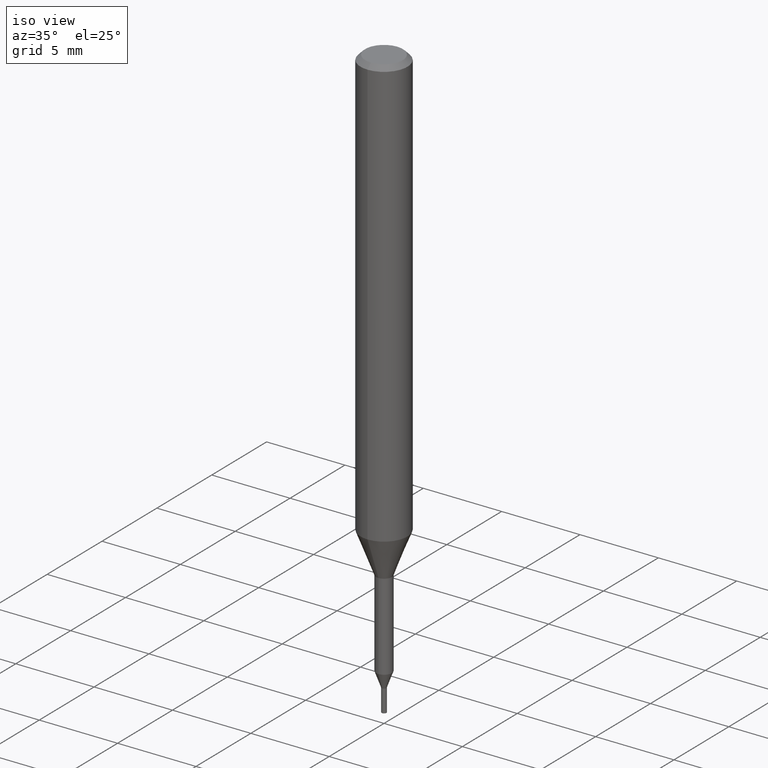
[diagram: clean part render]
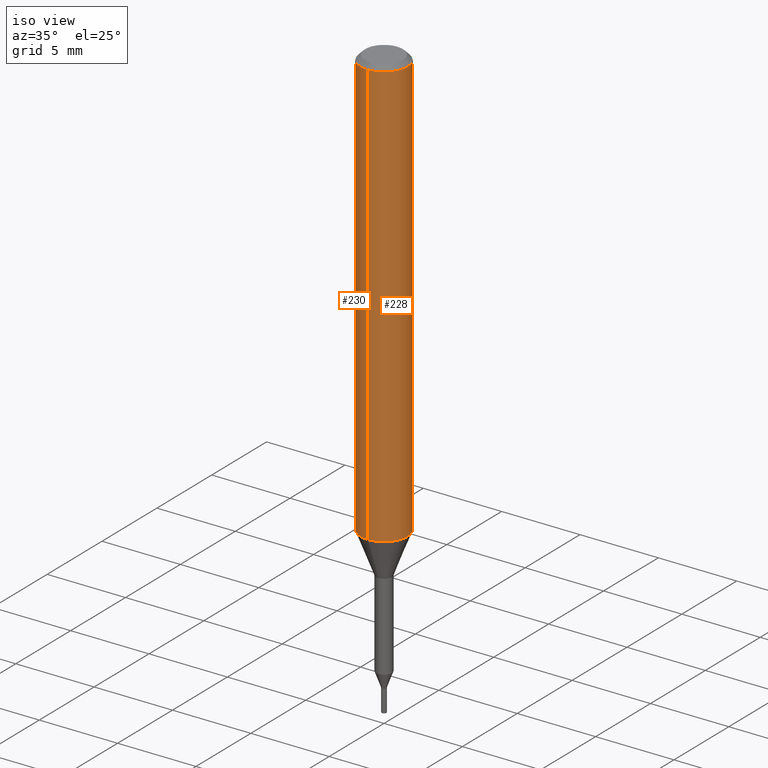
[diagram: same view with one multi-face feature highlighted, each face labeled with its STEP entity id]
A machine part, iso view. The highlighted faces form ONE feature: a constant-radius fillet chain: 2 tangent blend faces with common blend radius 1.5 mm. The faces share edges in the B-rep.
Their STEP definitions:
[1] entity #230 (Cylinder):
#158=VERTEX_POINT('',#343);
#178=EDGE_CURVE('',#158,#242,#366,.T.);
#182=VERTEX_POINT('',#370);
#188=EDGE_CURVE('',#242,#182,#376,.T.);
#194=EDGE_CURVE('',#158,#238,#382,.T.);
#230=ADVANCED_FACE('',(#425),#426,.T.);
#238=VERTEX_POINT('',#434);
#242=VERTEX_POINT('',#438);
#266=EDGE_CURVE('',#182,#238,#463,.T.);
#343=CARTESIAN_POINT('',(1.83690953073357E-016,-1.5,-27.395));
#366=LINE('',#575,#576);
#370=CARTESIAN_POINT('',(0.0,1.5,-0.300000000000001));
#376=CIRCLE('',#589,1.5);
#382=CIRCLE('',#599,1.5);
#425=FACE_OUTER_BOUND('',#652,.T.);
#426=CYLINDRICAL_SURFACE('',#653,1.5);
#434=CARTESIAN_POINT('',(0.0,1.5,-27.395));
#438=CARTESIAN_POINT('',(1.83690953073357E-016,-1.5,-0.300000000000001));
#463=LINE('',#702,#703);
#575=CARTESIAN_POINT('',(1.83690953073357E-016,-1.5,-13.8475));
#576=VECTOR('',#810,1.0);
#589=AXIS2_PLACEMENT_3D('',#812,#813,#814);
#599=AXIS2_PLACEMENT_3D('',#819,#820,#821);
#652=EDGE_LOOP('',(#896,#897,#898,#899));
#653=AXIS2_PLACEMENT_3D('',#900,#901,#902);
#702=CARTESIAN_POINT('',(-1.83690953073357E-016,1.5,-13.8475));
#703=VECTOR('',#929,1.0);
#810=DIRECTION('',(-0.0,-0.0,1.0));
#812=CARTESIAN_POINT('',(0.0,0.0,-0.300000000000001));
#813=DIRECTION('',(0.0,0.0,-1.0));
#814=DIRECTION('',(0.0,1.0,0.0));
#819=CARTESIAN_POINT('',(0.0,0.0,-27.395));
#820=DIRECTION('',(0.0,0.0,-1.0));
#821=DIRECTION('',(0.0,1.0,0.0));
#896=ORIENTED_EDGE('',*,*,#266,.T.);
#897=ORIENTED_EDGE('',*,*,#194,.F.);
#898=ORIENTED_EDGE('',*,*,#178,.T.);
#899=ORIENTED_EDGE('',*,*,#188,.T.);
#900=CARTESIAN_POINT('',(0.0,0.0,-13.8475));
#901=DIRECTION('',(-0.0,-0.0,1.0));
#902=DIRECTION('',(0.0,1.0,0.0));
#929=DIRECTION('',(0.0,0.0,-1.0));
[2] entity #228 (Cylinder):
#158=VERTEX_POINT('',#343);
#178=EDGE_CURVE('',#158,#242,#366,.T.);
#182=VERTEX_POINT('',#370);
#210=EDGE_CURVE('',#238,#158,#400,.T.);
#228=ADVANCED_FACE('',(#422),#423,.T.);
#238=VERTEX_POINT('',#434);
#242=VERTEX_POINT('',#438);
#258=EDGE_CURVE('',#182,#242,#455,.T.);
#266=EDGE_CURVE('',#182,#238,#463,.T.);
#343=CARTESIAN_POINT('',(1.83690953073357E-016,-1.5,-27.395));
#366=LINE('',#575,#576);
#370=CARTESIAN_POINT('',(0.0,1.5,-0.300000000000001));
#400=CIRCLE('',#623,1.5);
#422=FACE_OUTER_BOUND('',#649,.T.);
#423=CYLINDRICAL_SURFACE('',#650,1.5);
#434=CARTESIAN_POINT('',(0.0,1.5,-27.395));
#438=CARTESIAN_POINT('',(1.83690953073357E-016,-1.5,-0.300000000000001));
#455=CIRCLE('',#688,1.5);
#463=LINE('',#702,#703);
#575=CARTESIAN_POINT('',(1.83690953073357E-016,-1.5,-13.8475));
#576=VECTOR('',#810,1.0);
#623=AXIS2_PLACEMENT_3D('',#846,#847,#848);
#649=EDGE_LOOP('',(#888,#889,#890,#891));
#650=AXIS2_PLACEMENT_3D('',#892,#893,#894);
#688=AXIS2_PLACEMENT_3D('',#921,#922,#923);
#702=CARTESIAN_POINT('',(-1.83690953073357E-016,1.5,-13.8475));
#703=VECTOR('',#929,1.0);
#810=DIRECTION('',(-0.0,-0.0,1.0));
#846=CARTESIAN_POINT('',(0.0,0.0,-27.395));
#847=DIRECTION('',(0.0,0.0,-1.0));
#848=DIRECTION('',(0.0,1.0,0.0));
#888=ORIENTED_EDGE('',*,*,#266,.F.);
#889=ORIENTED_EDGE('',*,*,#258,.T.);
#890=ORIENTED_EDGE('',*,*,#178,.F.);
#891=ORIENTED_EDGE('',*,*,#210,.F.);
#892=CARTESIAN_POINT('',(0.0,0.0,-13.8475));
#893=DIRECTION('',(-0.0,-0.0,1.0));
#894=DIRECTION('',(0.0,1.0,0.0));
#921=CARTESIAN_POINT('',(0.0,0.0,-0.300000000000001));
#922=DIRECTION('',(0.0,0.0,-1.0));
#923=DIRECTION('',(0.0,1.0,0.0));
#929=DIRECTION('',(0.0,0.0,-1.0));